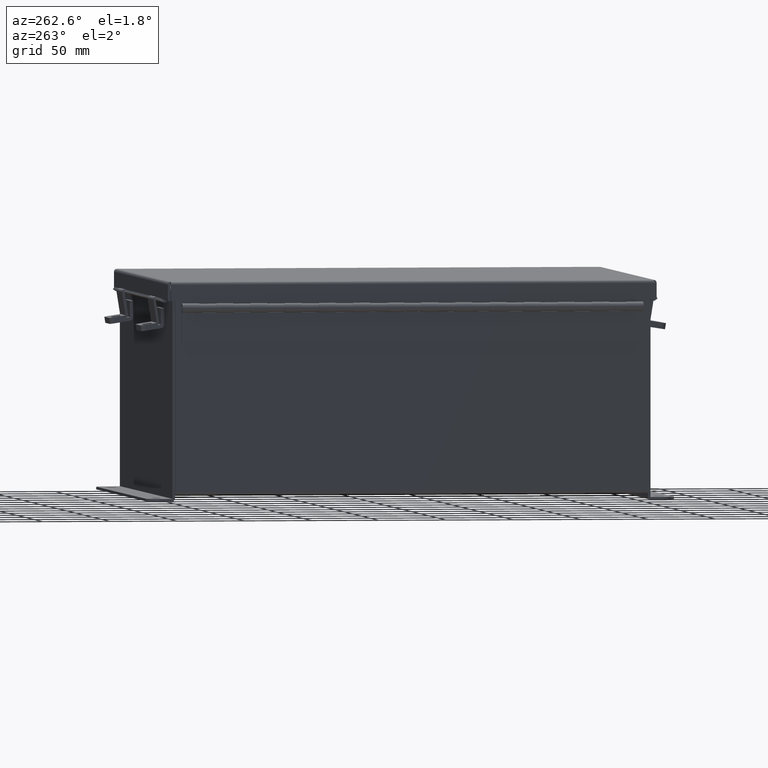
[diagram: clean part render]
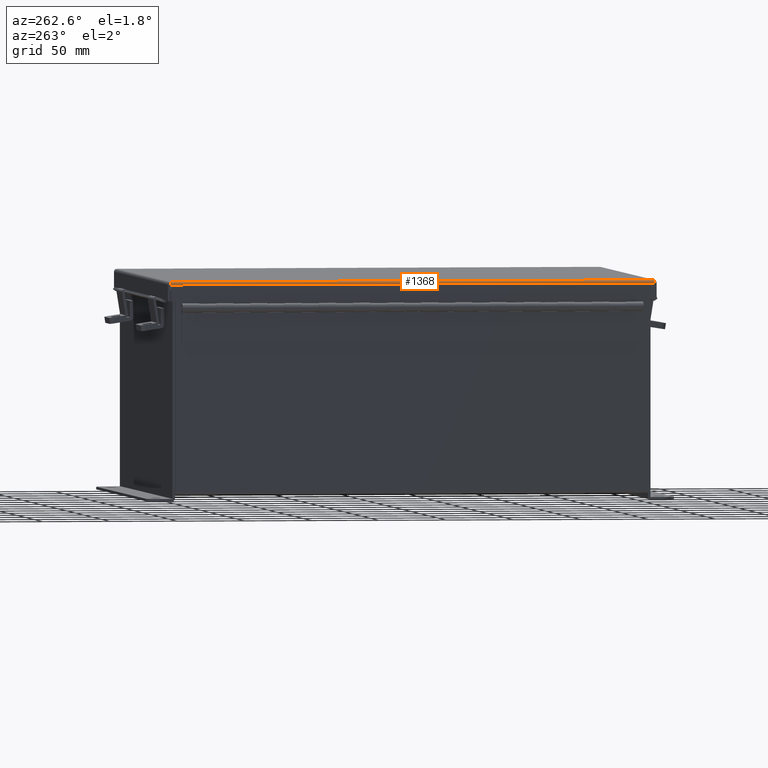
[diagram: same view with one face highlighted and labeled with its STEP entity id]
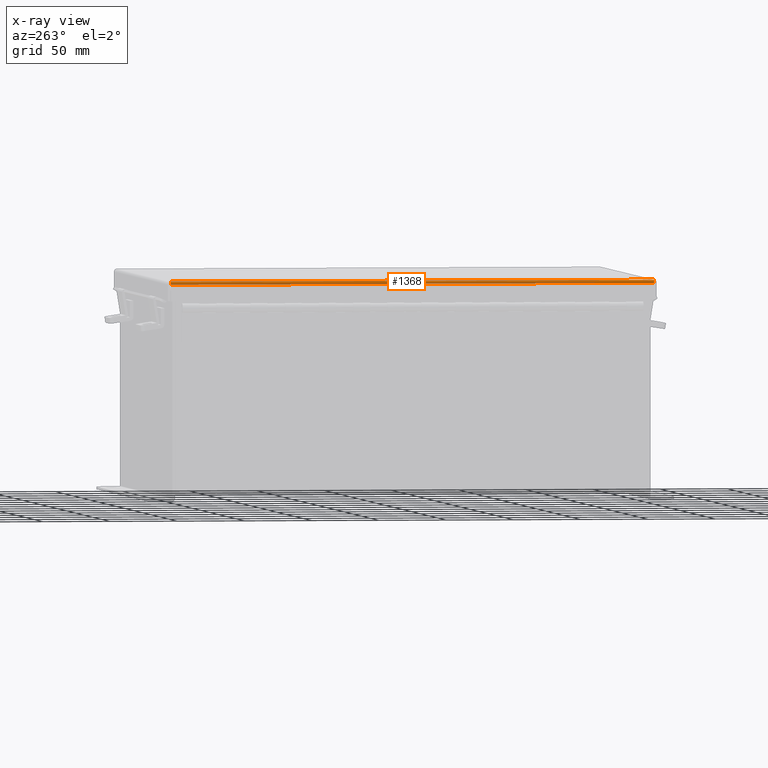
[diagram: x-ray of the same camera — body ghosted, the highlighted face saturated]
A machine part, auxiliary view. The second image highlights one B-rep face of the part: STEP entity #1368.
The next image is the same camera in x-ray: the body ghosted, the highlighted face saturated — about 0% of this face is hidden behind the body in this view.
In plain terms, the highlighted cylindrical surface (edge-blend (fillet) strip) has radius 2.2276 mm, axis along (0, 1, 0).
Its self-contained STEP definition (entity closure, byte-faithful):
#28 = CARTESIAN_POINT ( 'NONE',  ( 6.156250000000000000, -7.156250000000001800, 0.01299999999999978100 ) ) ;
#418 = ORIENTED_EDGE ( 'NONE', *, *, #12512, .T. ) ;
#1062 = CARTESIAN_POINT ( 'NONE',  ( 6.156249999999999100, 7.073984854505790000, 0.001520096845007970400 ) ) ;
#1204 = DIRECTION ( 'NONE',  ( -0.0000000000000000000, -1.000000000000000000, -8.208677865577646300E-017 ) ) ;
#1368 = ADVANCED_FACE ( 'NONE', ( #17987 ), #6258, .T. ) ;
#1450 = CARTESIAN_POINT ( 'NONE',  ( 6.091505289458310400, -7.069538155364689700, -0.07241740374381125400 ) ) ;
#2075 = VERTEX_POINT ( 'NONE', #16201 ) ;
#2084 = LINE ( 'NONE', #14767, #6406 ) ;
#2436 = VERTEX_POINT ( 'NONE', #17717 ) ;
#2541 = CARTESIAN_POINT ( 'NONE',  ( 6.145181066258666100, 7.072502621458754700, -0.03116738457852700700 ) ) ;
#3145 = VERTEX_POINT ( 'NONE', #11216 ) ;
#3824 = EDGE_CURVE ( 'NONE', #2075, #3145, #2084, .T. ) ;
#3983 = CARTESIAN_POINT ( 'NONE',  ( 6.068550000000000100, -7.068550000000001000, -0.07469999999999993300 ) ) ;
#3990 = CARTESIAN_POINT ( 'NONE',  ( 6.122445747341799900, 7.071020388411720400, -0.05713078207831933500 ) ) ;
#4065 = CARTESIAN_POINT ( 'NONE',  ( 6.156250000000000000, -7.074478932188138300, 0.01299999999999974100 ) ) ;
#4092 = DIRECTION ( 'NONE',  ( 1.000000000000000000, 0.0000000000000000000, -4.477801015840783100E-015 ) ) ;
#4409 = AXIS2_PLACEMENT_3D ( 'NONE', #8429, #15920, #4092 ) ;
#4514 = EDGE_CURVE ( 'NONE', #3145, #5529, #18533, .T. ) ;
#4620 = ORIENTED_EDGE ( 'NONE', *, *, #17050, .F. ) ;
#5433 = CARTESIAN_POINT ( 'NONE',  ( 6.091505289458309500, 7.069538155364688800, -0.07241740374381011600 ) ) ;
#5529 = VERTEX_POINT ( 'NONE', #5907 ) ;
#5907 = CARTESIAN_POINT ( 'NONE',  ( 6.156250000000000000, -7.074478932188138300, 0.01299999999999974100 ) ) ;
#6258 = CYLINDRICAL_SURFACE ( 'NONE', #4409, 0.08770000000000026400 ) ;
#6406 = VECTOR ( 'NONE', #1204, 39.37007874015748100 ) ;
#6950 = CARTESIAN_POINT ( 'NONE',  ( 6.068550000000000100, 7.068549999999999200, -0.07469999999999880900 ) ) ;
#7345 = DIRECTION ( 'NONE',  ( -3.424136966969389700E-031, -1.000000000000000000, -7.634859021594447800E-017 ) ) ;
#7976 = EDGE_LOOP ( 'NONE', ( #13950, #4620, #418, #9316 ) ) ;
#8091 = CARTESIAN_POINT ( 'NONE',  ( 6.112717384578525400, -7.070526310729379200, -0.06363106625866836500 ) ) ;
#8429 = CARTESIAN_POINT ( 'NONE',  ( 6.068550000000000100, 7.074478932188133800, 0.01300000000000129200 ) ) ;
#9316 = ORIENTED_EDGE ( 'NONE', *, *, #4514, .F. ) ;
#9584 = B_SPLINE_CURVE_WITH_KNOTS ( 'NONE', 3,
 ( #18599, #1062, #11312, #2541, #12776, #3990, #14237, #5433, #15714, #6950 ),
 .UNSPECIFIED., .F., .F.,
 ( 4, 2, 2, 2, 4 ),
 ( 0.0000000000000000000, 0.2500000000000000000, 0.5000000000000000000, 0.7500000000000000000, 1.000000000000000000 ),
 .UNSPECIFIED. ) ;
#10913 = CARTESIAN_POINT ( 'NONE',  ( 6.153967403743811500, -7.073490776823449600, -0.009955289458308837900 ) ) ;
#11216 = CARTESIAN_POINT ( 'NONE',  ( 6.068550000000000100, -7.068550000000001000, -0.07469999999999993300 ) ) ;
#11312 = CARTESIAN_POINT ( 'NONE',  ( 6.153967403743811500, 7.073490776823444300, -0.009955289458308138800 ) ) ;
#11490 = LINE ( 'NONE', #28, #18818 ) ;
#12512 = EDGE_CURVE ( 'NONE', #2436, #5529, #11490, .T. ) ;
#12776 = CARTESIAN_POINT ( 'NONE',  ( 6.138680782078321100, 7.072008543776411700, -0.04089574734179912000 ) ) ;
#13135 = CARTESIAN_POINT ( 'NONE',  ( 6.145181066258667900, -7.072502621458759200, -0.03116738457852785300 ) ) ;
#13152 = CARTESIAN_POINT ( 'NONE',  ( 6.122445747341799900, -7.071020388411726600, -0.05713078207832037600 ) ) ;
#13780 = CARTESIAN_POINT ( 'NONE',  ( 6.080029903154992300, -7.069044077682347500, -0.07469999999999996100 ) ) ;
#13950 = ORIENTED_EDGE ( 'NONE', *, *, #3824, .F. ) ;
#14237 = CARTESIAN_POINT ( 'NONE',  ( 6.112717384578527200, 7.070526310729378300, -0.06363106625866731000 ) ) ;
#14767 = CARTESIAN_POINT ( 'NONE',  ( 6.068550000000000100, 7.074478932188133800, -0.07469999999999880900 ) ) ;
#15714 = CARTESIAN_POINT ( 'NONE',  ( 6.080029903154993100, 7.069044077682343100, -0.07469999999999880900 ) ) ;
#15920 = DIRECTION ( 'NONE',  ( 0.0000000000000000000, 1.000000000000000000, 8.208677865577646300E-017 ) ) ;
#16201 = CARTESIAN_POINT ( 'NONE',  ( 6.068550000000000100, 7.068549999999999200, -0.07469999999999880900 ) ) ;
#17050 = EDGE_CURVE ( 'NONE', #2436, #2075, #9584, .T. ) ;
#17717 = CARTESIAN_POINT ( 'NONE',  ( 6.156250000000000000, 7.074478932188133800, 0.01300000000000086700 ) ) ;
#17987 = FACE_OUTER_BOUND ( 'NONE', #7976, .T. ) ;
#18321 = CARTESIAN_POINT ( 'NONE',  ( 6.156250000000000000, -7.073984854505794400, 0.001520096845007338100 ) ) ;
#18533 = B_SPLINE_CURVE_WITH_KNOTS ( 'NONE', 3,
 ( #3983, #13780, #1450, #8091, #13152, #18588, #13135, #10913, #18321, #4065 ),
 .UNSPECIFIED., .F., .F.,
 ( 4, 2, 2, 2, 4 ),
 ( 0.0000000000000000000, 0.2500000000000000000, 0.5000000000000000000, 0.7500000000000000000, 1.000000000000000000 ),
 .UNSPECIFIED. ) ;
#18588 = CARTESIAN_POINT ( 'NONE',  ( 6.138680782078321100, -7.072008543776417100, -0.04089574734180000100 ) ) ;
#18599 = CARTESIAN_POINT ( 'NONE',  ( 6.156250000000000000, 7.074478932188133800, 0.01300000000000086700 ) ) ;
#18818 = VECTOR ( 'NONE', #7345, 39.37007874015748100 ) ;